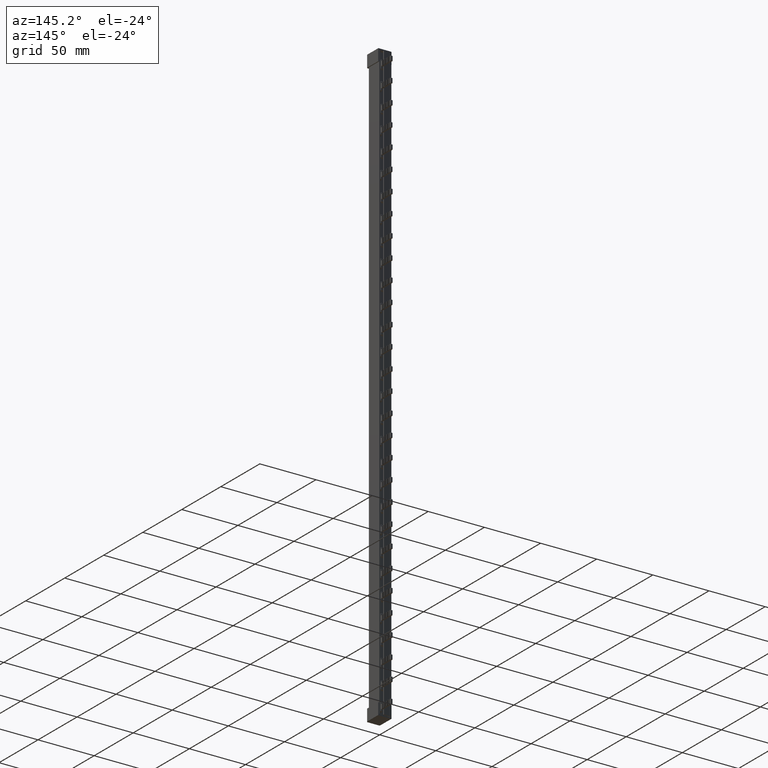
[diagram: clean part render]
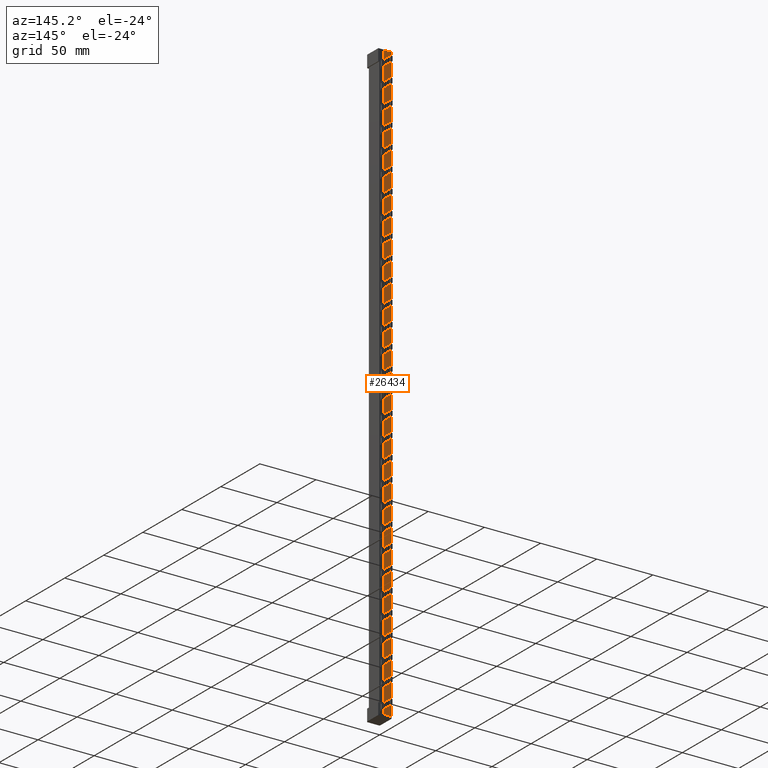
[diagram: same view with one face highlighted and labeled with its STEP entity id]
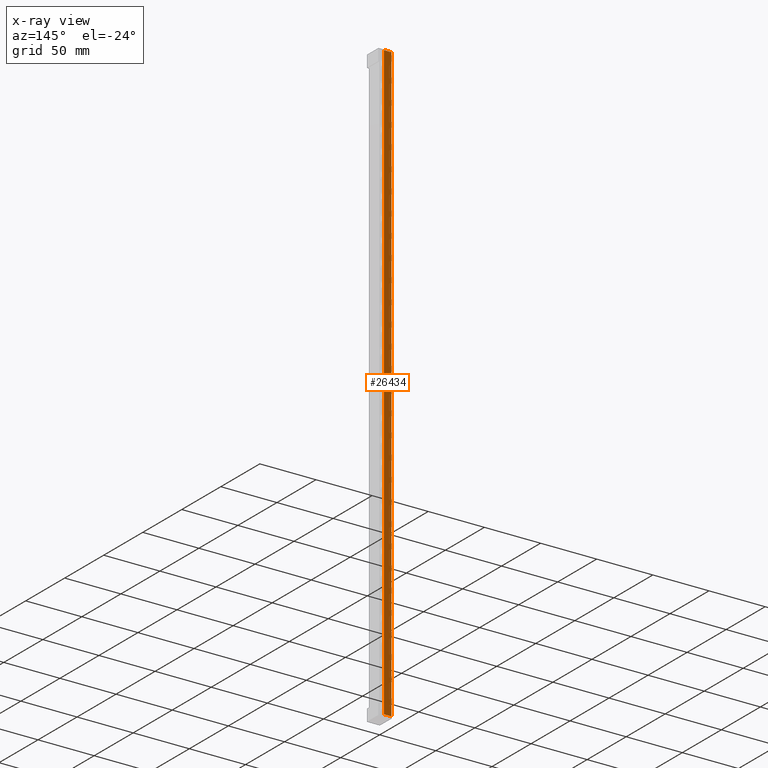
[diagram: x-ray of the same camera — body ghosted, the highlighted face saturated]
A machine part, auxiliary view. The second image highlights one B-rep face of the part: STEP entity #26434.
The next image is the same camera in x-ray: the body ghosted, the highlighted face saturated — about 0% of this face is hidden behind the body in this view.
In plain terms, the highlighted planar face has unit normal (0, -1, 0).
Its self-contained STEP definition (entity closure, byte-faithful):
#4033 = CARTESIAN_POINT ( 'NONE',  ( 6.499999999999950300, 14.99999999999998600, 217.7999999999999800 ) ) ;
#4037 = DIRECTION ( 'NONE',  ( -1.000000000000000000, -0.0000000000000000000, -0.0000000000000000000 ) ) ;
#4061 = LINE ( 'NONE', #4033, #39029 ) ;
#5696 = EDGE_LOOP ( 'NONE', ( #30251, #30233, #30239, #30299 ) ) ;
#6455 = EDGE_CURVE ( 'NONE', #26757, #26684, #4061, .T. ) ;
#6615 = EDGE_CURVE ( 'NONE', #26818, #26858, #39620, .T. ) ;
#6648 = EDGE_CURVE ( 'NONE', #26818, #26757, #39734, .T. ) ;
#6650 = EDGE_CURVE ( 'NONE', #26858, #26684, #39765, .T. ) ;
#9731 = DIRECTION ( 'NONE',  ( 0.0000000000000000000, -1.000000000000000000, 0.0000000000000000000 ) ) ;
#9734 = FACE_OUTER_BOUND ( 'NONE', #5696, .T. ) ;
#9735 = PLANE ( 'NONE',  #23012 ) ;
#9738 = CARTESIAN_POINT ( 'NONE',  ( 6.499999999999950300, 14.99999999999998600, 220.2000000000000200 ) ) ;
#9739 = DIRECTION ( 'NONE',  ( 0.0000000000000000000, -0.0000000000000000000, -1.000000000000000000 ) ) ;
#10357 = CARTESIAN_POINT ( 'NONE',  ( 0.0000000000000000000, 14.99999999999998600, 217.7999999999999800 ) ) ;
#10439 = CARTESIAN_POINT ( 'NONE',  ( 6.499999999999950300, 14.99999999999998600, 217.7999999999999800 ) ) ;
#10469 = CARTESIAN_POINT ( 'NONE',  ( 0.0000000000000000000, 14.99999999999998600, -313.8044323794305800 ) ) ;
#10483 = CARTESIAN_POINT ( 'NONE',  ( 6.499999999999950300, 14.99999999999998600, -313.8044323794328000 ) ) ;
#23012 = AXIS2_PLACEMENT_3D ( 'NONE', #9738, #9731, #9739 ) ;
#26434 = ADVANCED_FACE ( 'NONE', ( #9734 ), #9735, .F. ) ;
#26684 = VERTEX_POINT ( 'NONE', #10357 ) ;
#26757 = VERTEX_POINT ( 'NONE', #10439 ) ;
#26818 = VERTEX_POINT ( 'NONE', #10483 ) ;
#26858 = VERTEX_POINT ( 'NONE', #10469 ) ;
#30233 = ORIENTED_EDGE ( 'NONE', *, *, #6455, .F. ) ;
#30239 = ORIENTED_EDGE ( 'NONE', *, *, #6648, .F. ) ;
#30251 = ORIENTED_EDGE ( 'NONE', *, *, #6650, .T. ) ;
#30299 = ORIENTED_EDGE ( 'NONE', *, *, #6615, .T. ) ;
#39029 = VECTOR ( 'NONE', #4037, 1000.000000000000000 ) ;
#39162 = VECTOR ( 'NONE', #39626, 1000.000000000000000 ) ;
#39224 = VECTOR ( 'NONE', #39737, 1000.000000000000000 ) ;
#39248 = VECTOR ( 'NONE', #39743, 1000.000000000000000 ) ;
#39590 = CARTESIAN_POINT ( 'NONE',  ( 6.499999999630997400, 14.99999999999998600, -313.8044323794350100 ) ) ;
#39620 = LINE ( 'NONE', #39590, #39162 ) ;
#39626 = DIRECTION ( 'NONE',  ( -1.000000000000000000, 0.0000000000000000000, 6.924738560343257600E-013 ) ) ;
#39734 = LINE ( 'NONE', #39740, #39224 ) ;
#39737 = DIRECTION ( 'NONE',  ( -0.0000000000000000000, 0.0000000000000000000, 1.000000000000000000 ) ) ;
#39740 = CARTESIAN_POINT ( 'NONE',  ( 6.499999999999950300, 14.99999999999998600, 220.2000000000000200 ) ) ;
#39743 = DIRECTION ( 'NONE',  ( -0.0000000000000000000, -0.0000000000000000000, 1.000000000000000000 ) ) ;
#39765 = LINE ( 'NONE', #39779, #39248 ) ;
#39779 = CARTESIAN_POINT ( 'NONE',  ( 0.0000000000000000000, 14.99999999999998600, 220.2000000000000200 ) ) ;